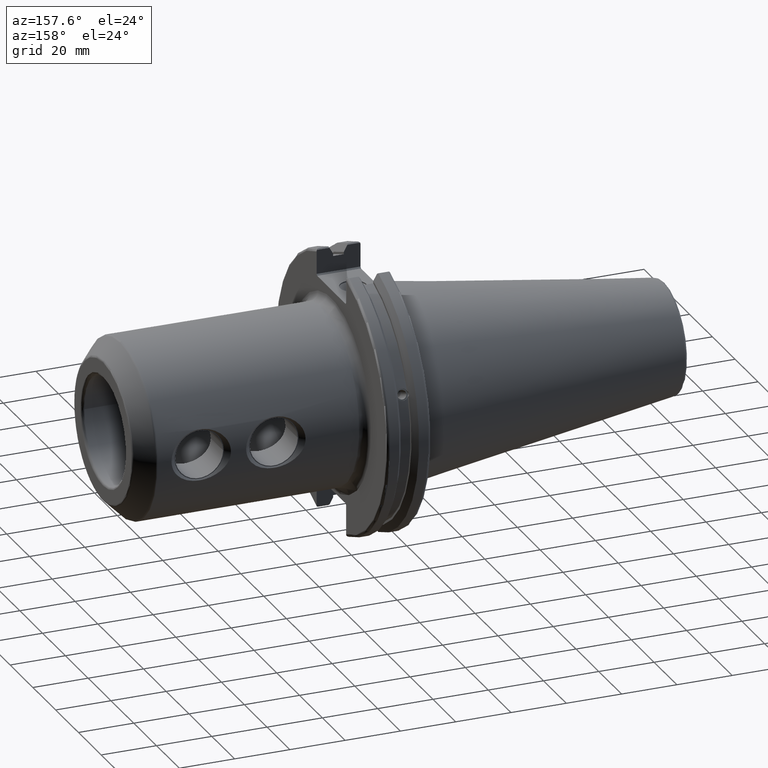
[diagram: clean part render]
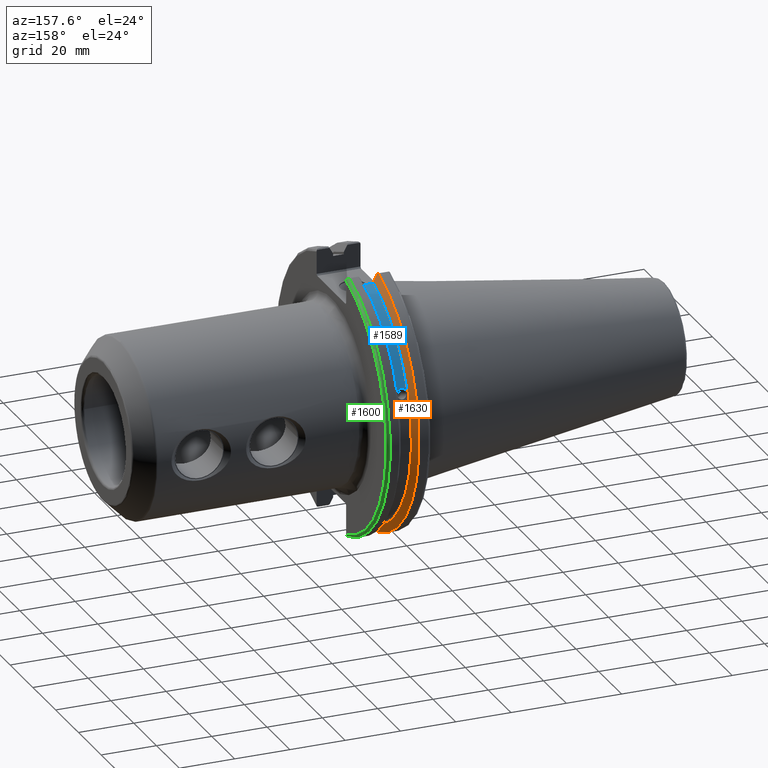
[diagram: same view with three faces highlighted in distinct colors, each labeled with its STEP entity id]
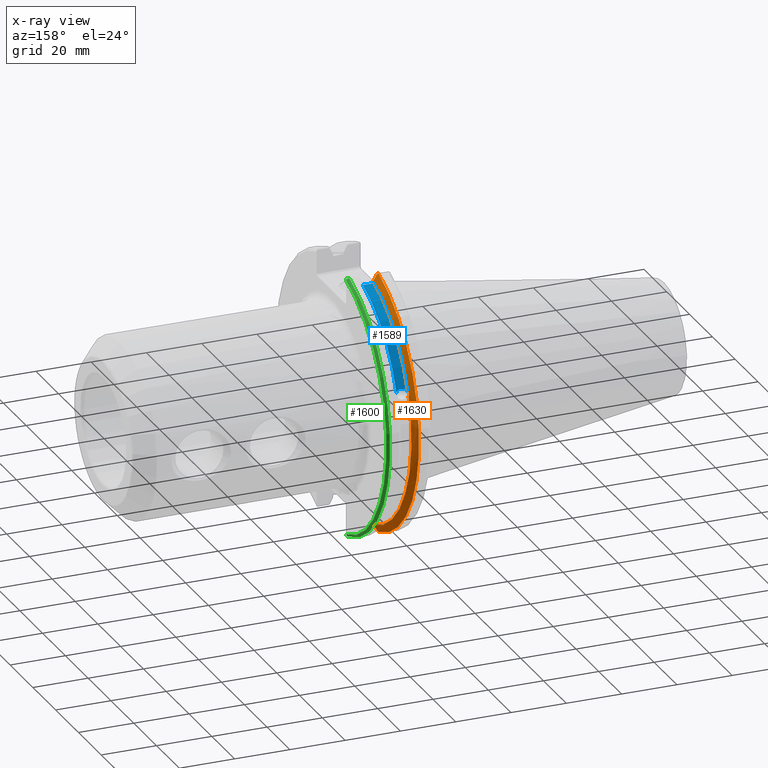
[diagram: x-ray of the same camera — body ghosted, the three highlighted faces saturated]
A machine part, auxiliary view with three faces highlighted in distinct colors.
The next image is the same camera in x-ray (body ghosted, the three faces saturated) — at least one of them is partly hidden behind the body in this view.
Their STEP definitions:

[orange] entity #1630 — the highlighted conical surface has half-angle 60 deg.
#23=(
BOUNDED_CURVE()
B_SPLINE_CURVE(2,(#3157,#3158,#3159),.UNSPECIFIED.,.F.,.F.)
B_SPLINE_CURVE_WITH_KNOTS((3,3),(0.,0.275823910675371),.UNSPECIFIED.)
CURVE()
GEOMETRIC_REPRESENTATION_ITEM()
RATIONAL_B_SPLINE_CURVE((1.,1.00038235575501,1.00012873637129))
REPRESENTATION_ITEM('')
);
#28=(
BOUNDED_CURVE()
B_SPLINE_CURVE(2,(#3299,#3300,#3301),.UNSPECIFIED.,.F.,.F.)
B_SPLINE_CURVE_WITH_KNOTS((3,3),(0.,0.0648240472898098),.UNSPECIFIED.)
CURVE()
GEOMETRIC_REPRESENTATION_ITEM()
RATIONAL_B_SPLINE_CURVE((1.,1.00011477674852,1.00019140645975))
REPRESENTATION_ITEM('')
);
#29=(
BOUNDED_CURVE()
B_SPLINE_CURVE(2,(#3330,#3331,#3332),.UNSPECIFIED.,.F.,.F.)
B_SPLINE_CURVE_WITH_KNOTS((3,3),(0.0558332664507334,0.331657177124507),
 .UNSPECIFIED.)
CURVE()
GEOMETRIC_REPRESENTATION_ITEM()
RATIONAL_B_SPLINE_CURVE((1.00012873636786,1.0003823557448,1.))
REPRESENTATION_ITEM('')
);
#30=(
BOUNDED_CURVE()
B_SPLINE_CURVE(2,(#3347,#3348,#3349),.UNSPECIFIED.,.F.,.F.)
B_SPLINE_CURVE_WITH_KNOTS((3,3),(0.325260944932395,0.390084992222207),
 .UNSPECIFIED.)
CURVE()
GEOMETRIC_REPRESENTATION_ITEM()
RATIONAL_B_SPLINE_CURVE((1.00019140645963,1.00011477674845,1.))
REPRESENTATION_ITEM('')
);
#53=CONICAL_SURFACE('',#1819,47.8172386482472,1.0471975511966);
#200=FACE_OUTER_BOUND('',#315,.T.);
#315=EDGE_LOOP('',(#1465,#1466,#1467,#1468,#1469,#1470,#1471,#1472));
#357=B_SPLINE_CURVE_WITH_KNOTS('',3,(#2970,#2971,#2972,#2973,#2974,#2975,
#2976,#2977,#2978,#2979,#2980,#2981,#2982,#2983),.UNSPECIFIED.,.F.,.F.,
(4,2,2,2,2,2,4),(0.426712868358719,0.441644498666906,0.48031331322313,0.518982127779354,
0.557650942335578,0.596319756891802,0.611251387199987),.UNSPECIFIED.);
#610=CIRCLE('',#1752,46.4219772964944);
#634=CIRCLE('',#1810,49.2125);
#637=CIRCLE('',#1820,46.4219772964944);
#730=VERTEX_POINT('',#2967);
#731=VERTEX_POINT('',#2969);
#743=VERTEX_POINT('',#3044);
#772=VERTEX_POINT('',#3154);
#773=VERTEX_POINT('',#3156);
#794=VERTEX_POINT('',#3297);
#800=VERTEX_POINT('',#3329);
#801=VERTEX_POINT('',#3339);
#917=EDGE_CURVE('',#731,#730,#357,.T.);
#933=EDGE_CURVE('',#731,#743,#610,.T.);
#974=EDGE_CURVE('',#773,#772,#23,.T.);
#1009=EDGE_CURVE('',#794,#772,#28,.T.);
#1023=EDGE_CURVE('',#800,#743,#29,.T.);
#1028=EDGE_CURVE('',#794,#801,#634,.T.);
#1030=EDGE_CURVE('',#800,#801,#30,.T.);
#1035=EDGE_CURVE('',#773,#730,#637,.T.);
#1465=ORIENTED_EDGE('',*,*,#917,.T.);
#1466=ORIENTED_EDGE('',*,*,#1035,.F.);
#1467=ORIENTED_EDGE('',*,*,#974,.T.);
#1468=ORIENTED_EDGE('',*,*,#1009,.F.);
#1469=ORIENTED_EDGE('',*,*,#1028,.T.);
#1470=ORIENTED_EDGE('',*,*,#1030,.F.);
#1471=ORIENTED_EDGE('',*,*,#1023,.T.);
#1472=ORIENTED_EDGE('',*,*,#933,.F.);
#1630=ADVANCED_FACE('',(#200),#53,.T.);
#1752=AXIS2_PLACEMENT_3D('',#3045,#2055,#2056);
#1810=AXIS2_PLACEMENT_3D('',#3341,#2218,#2219);
#1819=AXIS2_PLACEMENT_3D('',#3359,#2239,#2240);
#1820=AXIS2_PLACEMENT_3D('',#3360,#2241,#2242);
#2055=DIRECTION('center_axis',(1.,0.,0.));
#2056=DIRECTION('ref_axis',(0.,0.,-1.));
#2218=DIRECTION('center_axis',(1.,0.,0.));
#2219=DIRECTION('ref_axis',(0.,0.,-1.));
#2239=DIRECTION('center_axis',(-1.,0.,0.));
#2240=DIRECTION('ref_axis',(0.,1.,0.));
#2241=DIRECTION('center_axis',(1.,0.,0.));
#2242=DIRECTION('ref_axis',(0.,0.,-1.));
#2967=CARTESIAN_POINT('',(9.21910000000001,43.9096390749305,15.0646464421033));
#2969=CARTESIAN_POINT('',(9.2191,43.3201030900029,16.684383248648));
#2970=CARTESIAN_POINT('Ctrl Pts',(9.21910000000001,43.3201030900028,16.6843832486479));
#2971=CARTESIAN_POINT('Ctrl Pts',(9.20211843903392,43.361310694134,16.6592273018006));
#2972=CARTESIAN_POINT('Ctrl Pts',(9.18608675403322,43.4012416983557,16.6326763251437));
#2973=CARTESIAN_POINT('Ctrl Pts',(9.13238673845037,43.539103734322,16.5325130832406));
#2974=CARTESIAN_POINT('Ctrl Pts',(9.09621610663555,43.6406982153492,16.4411807953719));
#2975=CARTESIAN_POINT('Ctrl Pts',(9.04690868251975,43.8110833825827,16.2291323464527));
#2976=CARTESIAN_POINT('Ctrl Pts',(9.0341,43.8794096049168,16.10796730316));
#2977=CARTESIAN_POINT('Ctrl Pts',(9.03409999999999,43.9675796948952,15.8657219718732));
#2978=CARTESIAN_POINT('Ctrl Pts',(9.04690868251975,43.9931221605126,15.7289849146254));
#2979=CARTESIAN_POINT('Ctrl Pts',(9.09621610663555,43.9989016655819,15.4570249042867));
#2980=CARTESIAN_POINT('Ctrl Pts',(9.13238673845037,43.9797830409458,15.3217566390708));
#2981=CARTESIAN_POINT('Ctrl Pts',(9.18608675403322,43.9385582852181,15.1564111356409));
#2982=CARTESIAN_POINT('Ctrl Pts',(9.20211843903391,43.9250360001461,15.1104047527575));
#2983=CARTESIAN_POINT('Ctrl Pts',(9.2191,43.9096390749305,15.0646464421033));
#3044=CARTESIAN_POINT('',(9.2191,12.95,44.5791147973604));
#3045=CARTESIAN_POINT('Origin',(9.2191,0.,0.));
#3154=CARTESIAN_POINT('',(7.88638960562424,12.95,-46.9780755322918));
#3156=CARTESIAN_POINT('',(9.2191,12.95,-44.5791147973604));
#3157=CARTESIAN_POINT('Ctrl Pts',(9.2191,12.95,-44.5791147973604));
#3158=CARTESIAN_POINT('Ctrl Pts',(8.57020449055505,12.95,-45.7494966802211));
#3159=CARTESIAN_POINT('Ctrl Pts',(7.88638960562424,12.95,-46.9780755322917));
#3297=CARTESIAN_POINT('',(7.60799096595127,13.4317035994433,-47.3440544806494));
#3299=CARTESIAN_POINT('Ctrl Pts',(7.60799096595127,13.4317035994433,-47.3440544806494));
#3300=CARTESIAN_POINT('Ctrl Pts',(7.74826896663819,13.1896660169966,-47.1601640966264));
#3301=CARTESIAN_POINT('Ctrl Pts',(7.88638960562424,12.95,-46.9780755322918));
#3329=CARTESIAN_POINT('',(7.88638960562424,12.95,46.9780755322918));
#3330=CARTESIAN_POINT('Ctrl Pts',(7.88638960562424,12.95,46.9780755322918));
#3331=CARTESIAN_POINT('Ctrl Pts',(8.57020449054228,12.95,45.7494966802441));
#3332=CARTESIAN_POINT('Ctrl Pts',(9.2191,12.95,44.5791147973604));
#3339=CARTESIAN_POINT('',(7.60799096595127,13.4317035994433,47.3440544806494));
#3341=CARTESIAN_POINT('Origin',(7.60799096595127,0.,0.));
#3347=CARTESIAN_POINT('Ctrl Pts',(7.88638960562424,12.95,46.9780755322918));
#3348=CARTESIAN_POINT('Ctrl Pts',(7.74826896663818,13.1896660169966,47.1601640966265));
#3349=CARTESIAN_POINT('Ctrl Pts',(7.60799096595127,13.4317035994433,47.3440544806494));
#3359=CARTESIAN_POINT('Origin',(8.41354548297563,0.,0.));
#3360=CARTESIAN_POINT('Origin',(9.2191,0.,0.));

[blue] entity #1589 — the highlighted cylindrical surface (partial cylindrical patch) has radius 45.6435 mm, axis along (1, 0, 0).
#159=FACE_OUTER_BOUND('',#267,.T.);
#267=EDGE_LOOP('',(#1248,#1249,#1250,#1251));
#358=B_SPLINE_CURVE_WITH_KNOTS('',3,(#2987,#2988,#2989,#2990,#2991,#2992,
#2993,#2994,#2995,#2996,#2997,#2998,#2999,#3000,#3001),.UNSPECIFIED.,.F.,
 .F.,(4,2,2,3,2,2,4),(-0.231381164054416,-0.158232381135623,-0.0791161905678115,
0.,0.0791161905678115,0.158232381135623,0.231381164054563),
 .UNSPECIFIED.);
#416=LINE('',#3042,#510);
#510=VECTOR('',#2052,10.);
#608=CIRCLE('',#1748,45.6435);
#609=CIRCLE('',#1750,45.6435);
#732=VERTEX_POINT('',#2984);
#733=VERTEX_POINT('',#2986);
#741=VERTEX_POINT('',#3036);
#742=VERTEX_POINT('',#3040);
#919=EDGE_CURVE('',#733,#732,#358,.T.);
#929=EDGE_CURVE('',#733,#741,#608,.T.);
#931=EDGE_CURVE('',#732,#742,#609,.T.);
#932=EDGE_CURVE('',#742,#741,#416,.T.);
#1248=ORIENTED_EDGE('',*,*,#919,.T.);
#1249=ORIENTED_EDGE('',*,*,#931,.T.);
#1250=ORIENTED_EDGE('',*,*,#932,.T.);
#1251=ORIENTED_EDGE('',*,*,#929,.F.);
#1539=CYLINDRICAL_SURFACE('',#1749,45.6435);
#1589=ADVANCED_FACE('',(#159),#1539,.T.);
#1748=AXIS2_PLACEMENT_3D('',#3037,#2045,#2046);
#1749=AXIS2_PLACEMENT_3D('',#3039,#2048,#2049);
#1750=AXIS2_PLACEMENT_3D('',#3041,#2050,#2051);
#2045=DIRECTION('center_axis',(1.,0.,0.));
#2046=DIRECTION('ref_axis',(0.,0.,-1.));
#2048=DIRECTION('center_axis',(1.,0.,0.));
#2049=DIRECTION('ref_axis',(0.,1.,0.));
#2050=DIRECTION('center_axis',(1.,0.,0.));
#2051=DIRECTION('ref_axis',(0.,0.,-1.));
#2052=DIRECTION('',(1.,0.,0.));
#2984=CARTESIAN_POINT('',(9.2191,42.5884454651059,16.4180816515115));
#2986=CARTESIAN_POINT('',(13.0491,42.5884454651059,16.4180816515115));
#2987=CARTESIAN_POINT('Ctrl Pts',(13.0491,42.5884454651059,16.4180816515115));
#2988=CARTESIAN_POINT('Ctrl Pts',(12.9428782240206,42.5035323832641,16.6383458840848));
#2989=CARTESIAN_POINT('Ctrl Pts',(12.791391924423,42.4245077186417,16.8380515255915));
#2990=CARTESIAN_POINT('Ctrl Pts',(12.4325949659982,42.2908173017388,17.1712159412199));
#2991=CARTESIAN_POINT('Ctrl Pts',(12.1964796719457,42.2294695309474,17.3208689126276));
#2992=CARTESIAN_POINT('Ctrl Pts',(11.6790940832128,42.1475978938586,17.5191491957165));
#2993=CARTESIAN_POINT('Ctrl Pts',(11.397820635226,42.1271980081205,17.5678194501937));
#2994=CARTESIAN_POINT('Ctrl Pts',(11.1341,42.1271980081205,17.5678194501937));
#2995=CARTESIAN_POINT('Ctrl Pts',(10.870379364774,42.1271980081205,17.5678194501937));
#2996=CARTESIAN_POINT('Ctrl Pts',(10.5891059167872,42.1475978938586,17.5191491957165));
#2997=CARTESIAN_POINT('Ctrl Pts',(10.0717203280543,42.2294695309474,17.3208689126276));
#2998=CARTESIAN_POINT('Ctrl Pts',(9.83560503400179,42.2908173017388,17.1712159412199));
#2999=CARTESIAN_POINT('Ctrl Pts',(9.47680807557666,42.4245077186418,16.8380515255912));
#3000=CARTESIAN_POINT('Ctrl Pts',(9.32532177598177,42.5035323832622,16.6383458840897));
#3001=CARTESIAN_POINT('Ctrl Pts',(9.2191,42.5884454651059,16.4180816515115));
#3036=CARTESIAN_POINT('',(13.0491,12.95,43.7678716897452));
#3037=CARTESIAN_POINT('Origin',(13.0491,0.,0.));
#3039=CARTESIAN_POINT('Origin',(11.1341,0.,0.));
#3040=CARTESIAN_POINT('',(9.2191,12.95,43.7678716897452));
#3041=CARTESIAN_POINT('Origin',(9.2191,0.,0.));
#3042=CARTESIAN_POINT('',(11.1341,12.95,43.7678716897452));

[green] entity #1600 — the highlighted toroidal blend (fillet) surface has major radius 48.2125 mm and minor (blend) radius 1 mm.
#38=TOROIDAL_SURFACE('',#1775,48.2125,1.);
#170=FACE_OUTER_BOUND('',#284,.T.);
#284=EDGE_LOOP('',(#1306,#1307,#1308,#1309,#1310,#1311));
#360=B_SPLINE_CURVE_WITH_KNOTS('',3,(#3110,#3111,#3112,#3113,#3114,#3115),
 .UNSPECIFIED.,.F.,.F.,(4,2,4),(0.0976892167532868,0.112000071948293,0.150881870548587),
 .UNSPECIFIED.);
#361=B_SPLINE_CURVE_WITH_KNOTS('',3,(#3117,#3118,#3119,#3120,#3121,#3122),
 .UNSPECIFIED.,.F.,.F.,(4,2,4),(0.452859340315922,0.491741138916218,0.506051994111223),
 .UNSPECIFIED.);
#362=B_SPLINE_CURVE_WITH_KNOTS('',3,(#3124,#3125,#3126,#3127,#3128,#3129,
#3130,#3131),.UNSPECIFIED.,.F.,.F.,(4,2,2,4),(-0.104075769062722,-0.0730268503455479,
-0.0343639873656263,0.),.UNSPECIFIED.);
#363=B_SPLINE_CURVE_WITH_KNOTS('',3,(#3134,#3135,#3136,#3137,#3138,#3139,
#3140,#3141),.UNSPECIFIED.,.F.,.F.,(4,2,2,4),(0.,0.0343639873656263,0.0730268503455477,
0.104075769062723),.UNSPECIFIED.);
#586=CIRCLE('',#1703,48.2125);
#623=CIRCLE('',#1776,49.2125);
#671=VERTEX_POINT('',#2499);
#672=VERTEX_POINT('',#2500);
#767=VERTEX_POINT('',#3109);
#768=VERTEX_POINT('',#3116);
#769=VERTEX_POINT('',#3123);
#770=VERTEX_POINT('',#3132);
#844=EDGE_CURVE('',#671,#672,#586,.T.);
#964=EDGE_CURVE('',#767,#671,#360,.T.);
#965=EDGE_CURVE('',#672,#768,#361,.T.);
#966=EDGE_CURVE('',#768,#769,#362,.T.);
#967=EDGE_CURVE('',#769,#770,#623,.T.);
#968=EDGE_CURVE('',#770,#767,#363,.T.);
#1306=ORIENTED_EDGE('',*,*,#964,.T.);
#1307=ORIENTED_EDGE('',*,*,#844,.T.);
#1308=ORIENTED_EDGE('',*,*,#965,.T.);
#1309=ORIENTED_EDGE('',*,*,#966,.T.);
#1310=ORIENTED_EDGE('',*,*,#967,.T.);
#1311=ORIENTED_EDGE('',*,*,#968,.T.);
#1600=ADVANCED_FACE('',(#170),#38,.T.);
#1703=AXIS2_PLACEMENT_3D('',#2501,#1923,#1924);
#1775=AXIS2_PLACEMENT_3D('',#3108,#2118,#2119);
#1776=AXIS2_PLACEMENT_3D('',#3133,#2120,#2121);
#1923=DIRECTION('center_axis',(-1.,0.,0.));
#1924=DIRECTION('ref_axis',(0.,1.,-6.12323399573677E-17));
#2118=DIRECTION('center_axis',(1.,0.,0.));
#2119=DIRECTION('ref_axis',(0.,0.,-1.));
#2120=DIRECTION('center_axis',(1.,0.,0.));
#2121=DIRECTION('ref_axis',(0.,1.,-6.12323399573677E-17));
#2499=CARTESIAN_POINT('',(19.05,12.95,46.4407434937254));
#2500=CARTESIAN_POINT('',(19.05,12.95,-46.4407434937254));
#2501=CARTESIAN_POINT('Origin',(19.05,0.,0.));
#3108=CARTESIAN_POINT('Origin',(18.05,0.,0.));
#3109=CARTESIAN_POINT('',(18.9055020570566,12.95,46.9780755322918));
#3110=CARTESIAN_POINT('Ctrl Pts',(18.9055020570566,12.95,46.9780755322918));
#3111=CARTESIAN_POINT('Ctrl Pts',(18.9315844351616,12.95,46.9333752207329));
#3112=CARTESIAN_POINT('Ctrl Pts',(18.9538432708766,12.95,46.887363294568));
#3113=CARTESIAN_POINT('Ctrl Pts',(19.0204646992875,12.95,46.7230464903732));
#3114=CARTESIAN_POINT('Ctrl Pts',(19.05,12.95,46.5703494890597));
#3115=CARTESIAN_POINT('Ctrl Pts',(19.05,12.95,46.4407434937254));
#3116=CARTESIAN_POINT('',(18.9055020570566,12.95,-46.9780755322918));
#3117=CARTESIAN_POINT('Ctrl Pts',(19.05,12.95,-46.4407434937254));
#3118=CARTESIAN_POINT('Ctrl Pts',(19.05,12.95,-46.5703494890597));
#3119=CARTESIAN_POINT('Ctrl Pts',(19.0204646992875,12.95,-46.7230464903732));
#3120=CARTESIAN_POINT('Ctrl Pts',(18.9538432708766,12.95,-46.887363294568));
#3121=CARTESIAN_POINT('Ctrl Pts',(18.9315844351616,12.95,-46.9333752207329));
#3122=CARTESIAN_POINT('Ctrl Pts',(18.9055020570566,12.95,-46.9780755322918));
#3123=CARTESIAN_POINT('',(18.05,13.4317035994433,-47.3440544806494));
#3124=CARTESIAN_POINT('Ctrl Pts',(18.9055020570566,12.95,-46.9780755322918));
#3125=CARTESIAN_POINT('Ctrl Pts',(18.8571496772125,13.0300321736484,-47.0388807469102));
#3126=CARTESIAN_POINT('Ctrl Pts',(18.792640282015,13.1083611826073,-47.0983919657547));
#3127=CARTESIAN_POINT('Ctrl Pts',(18.6399248789208,13.2478194810695,-47.2043467509586));
#3128=CARTESIAN_POINT('Ctrl Pts',(18.5186188350904,13.3242014686232,-47.2623787015413));
#3129=CARTESIAN_POINT('Ctrl Pts',(18.2983889675417,13.4067722493645,-47.3251126473446));
#3130=CARTESIAN_POINT('Ctrl Pts',(18.1645466245521,13.4317035994433,-47.3440544806494));
#3131=CARTESIAN_POINT('Ctrl Pts',(18.05,13.4317035994433,-47.3440544806494));
#3132=CARTESIAN_POINT('',(18.05,13.4317035994433,47.3440544806494));
#3133=CARTESIAN_POINT('Origin',(18.05,0.,0.));
#3134=CARTESIAN_POINT('Ctrl Pts',(18.05,13.4317035994433,47.3440544806494));
#3135=CARTESIAN_POINT('Ctrl Pts',(18.1645466245521,13.4317035994433,47.3440544806494));
#3136=CARTESIAN_POINT('Ctrl Pts',(18.2983889675417,13.4067722493645,47.3251126473446));
#3137=CARTESIAN_POINT('Ctrl Pts',(18.5186188350904,13.3242014686233,47.2623787015413));
#3138=CARTESIAN_POINT('Ctrl Pts',(18.6399248789208,13.2478194810695,47.2043467509586));
#3139=CARTESIAN_POINT('Ctrl Pts',(18.792640282015,13.1083611826073,47.0983919657547));
#3140=CARTESIAN_POINT('Ctrl Pts',(18.8571496772125,13.0300321736484,47.0388807469102));
#3141=CARTESIAN_POINT('Ctrl Pts',(18.9055020570566,12.95,46.9780755322918));